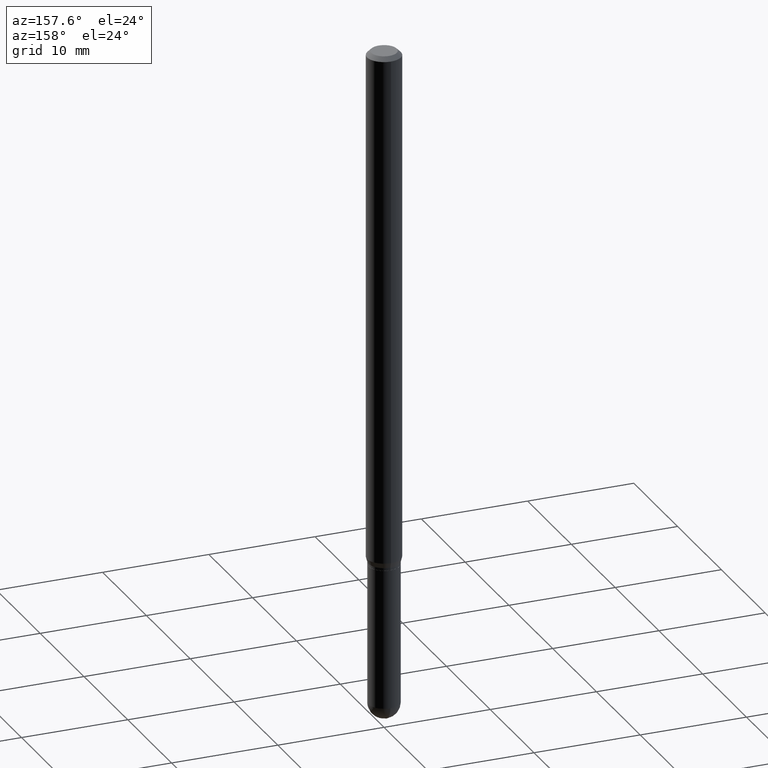
[diagram: clean part render]
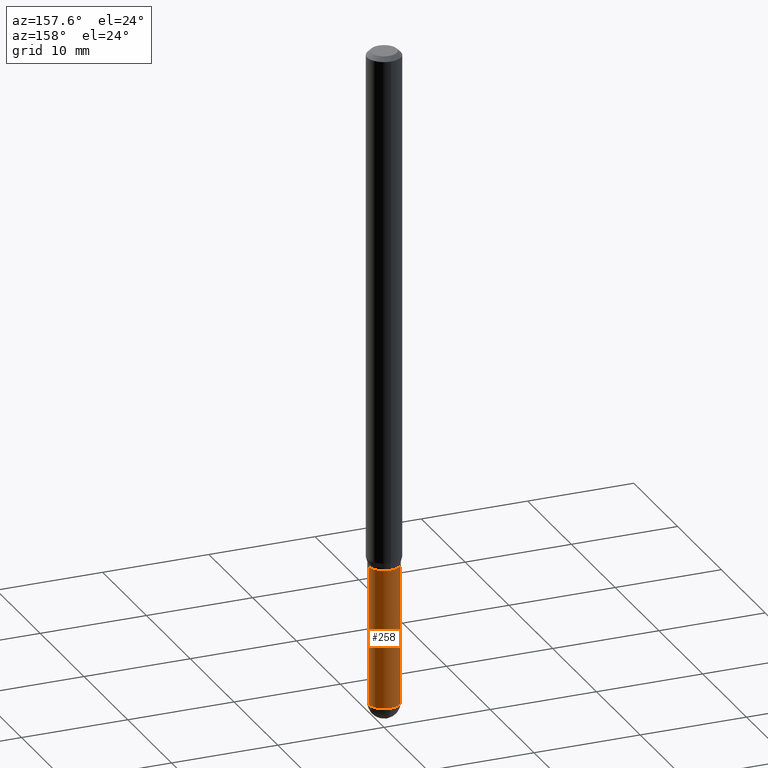
[diagram: same view with one face highlighted and labeled with its STEP entity id]
A machine part, auxiliary view. The second image highlights one B-rep face of the part: STEP entity #258.
In plain terms, the highlighted cylindrical surface (edge-blend (fillet) strip) has radius 1.4605 mm, axis along (-0, 0, 1).
Its self-contained STEP definition (entity closure, byte-faithful):
#7 = CARTESIAN_POINT ( 'NONE',  ( 5.973057559107196227E-29, -8.527943170124383355E-15, -2.442499999999999893 ) ) ;
#13 = EDGE_CURVE ( 'NONE', #428, #29, #503, .T. ) ;
#17 = FACE_OUTER_BOUND ( 'NONE', #150, .T. ) ;
#29 = VERTEX_POINT ( 'NONE', #270 ) ;
#32 = CARTESIAN_POINT ( 'NONE',  ( 5.973057559107196227E-29, -8.527943170124383355E-15, -2.442499999999999893 ) ) ;
#51 = LINE ( 'NONE', #95, #54 ) ;
#52 = EDGE_CURVE ( 'NONE', #466, #282, #232, .T. ) ;
#54 = VECTOR ( 'NONE', #276, 39.37007874015748143 ) ;
#71 = ORIENTED_EDGE ( 'NONE', *, *, #13, .F. ) ;
#87 = AXIS2_PLACEMENT_3D ( 'NONE', #32, #160, #505 ) ;
#95 = CARTESIAN_POINT ( 'NONE',  ( -0.05750000000000000250, 4.085620730620576246E-16, -2.828387676896570712E-30 ) ) ;
#104 = CARTESIAN_POINT ( 'NONE',  ( 0.05750000000000000250, -8.026042727665680963E-15, -2.442499999999999893 ) ) ;
#125 = DIRECTION ( 'NONE',  ( 1.000000000000000000, -6.982962677686265922E-15, 4.876176775795935232E-29 ) ) ;
#132 = CIRCLE ( 'NONE', #181, 0.05750000000000000250 ) ;
#150 = EDGE_LOOP ( 'NONE', ( #186, #176, #233, #71, #346 ) ) ;
#160 = DIRECTION ( 'NONE',  ( -2.445468806185136597E-29, 3.491481338843145583E-15, 1.000000000000000000 ) ) ;
#163 = DIRECTION ( 'NONE',  ( -2.445468806185136877E-29, 3.491481338843145188E-15, 1.000000000000000000 ) ) ;
#168 = DIRECTION ( 'NONE',  ( -2.445468806185136597E-29, 3.491481338843145583E-15, 1.000000000000000000 ) ) ;
#176 = ORIENTED_EDGE ( 'NONE', *, *, #214, .T. ) ;
#181 = AXIS2_PLACEMENT_3D ( 'NONE', #7, #168, #281 ) ;
#186 = ORIENTED_EDGE ( 'NONE', *, *, #52, .T. ) ;
#214 = EDGE_CURVE ( 'NONE', #282, #468, #51, .T. ) ;
#216 = DIRECTION ( 'NONE',  ( 1.000000000000000000, -6.982962677686273810E-15, 0.000000000000000000 ) ) ;
#232 = CIRCLE ( 'NONE', #87, 0.05750000000000000250 ) ;
#233 = ORIENTED_EDGE ( 'NONE', *, *, #446, .F. ) ;
#237 = CARTESIAN_POINT ( 'NONE',  ( 0.05750000000000000250, -4.015203539669603161E-16, 2.803801646082662941E-30 ) ) ;
#258 = ADVANCED_FACE ( 'NONE', ( #17 ), #326, .T. ) ;
#270 = CARTESIAN_POINT ( 'NONE',  ( 0.05750000000000000250, -7.122621931240016973E-15, -1.925000000000000044 ) ) ;
#276 = DIRECTION ( 'NONE',  ( -2.445468806185136877E-29, 3.491481338843145188E-15, 1.000000000000000000 ) ) ;
#281 = DIRECTION ( 'NONE',  ( 1.000000000000000000, -6.982962677686273810E-15, 0.000000000000000000 ) ) ;
#282 = VERTEX_POINT ( 'NONE', #447 ) ;
#298 = EDGE_CURVE ( 'NONE', #428, #466, #132, .T. ) ;
#326 = CYLINDRICAL_SURFACE ( 'NONE', #373, 0.05750000000000000250 ) ;
#329 = AXIS2_PLACEMENT_3D ( 'NONE', #409, #452, #216 ) ;
#330 = CARTESIAN_POINT ( 'NONE',  ( 4.015203539670193328E-16, 0.05749999999999136358, -2.442500000000000338 ) ) ;
#346 = ORIENTED_EDGE ( 'NONE', *, *, #298, .T. ) ;
#368 = CARTESIAN_POINT ( 'NONE',  ( -0.05750000000000000250, -7.215960300636662578E-15, -1.925000000000000044 ) ) ;
#373 = AXIS2_PLACEMENT_3D ( 'NONE', #400, #472, #125 ) ;
#400 = CARTESIAN_POINT ( 'NONE',  ( 0.000000000000000000, 0.000000000000000000, 0.000000000000000000 ) ) ;
#409 = CARTESIAN_POINT ( 'NONE',  ( 4.707527451906388285E-29, -6.721101577273056164E-15, -1.925000000000000044 ) ) ;
#411 = VECTOR ( 'NONE', #163, 39.37007874015748143 ) ;
#428 = VERTEX_POINT ( 'NONE', #104 ) ;
#446 = EDGE_CURVE ( 'NONE', #29, #468, #465, .T. ) ;
#447 = CARTESIAN_POINT ( 'NONE',  ( -0.05750000000000000250, -7.215960300636662578E-15, -2.442499999999999893 ) ) ;
#452 = DIRECTION ( 'NONE',  ( -2.445468806185136597E-29, 3.491481338843145583E-15, 1.000000000000000000 ) ) ;
#465 = CIRCLE ( 'NONE', #329, 0.05750000000000000250 ) ;
#466 = VERTEX_POINT ( 'NONE', #330 ) ;
#468 = VERTEX_POINT ( 'NONE', #368 ) ;
#472 = DIRECTION ( 'NONE',  ( -2.445468806185136597E-29, 3.491481338843145583E-15, 1.000000000000000000 ) ) ;
#503 = LINE ( 'NONE', #237, #411 ) ;
#505 = DIRECTION ( 'NONE',  ( 1.000000000000000000, -6.982962677686273810E-15, 0.000000000000000000 ) ) ;